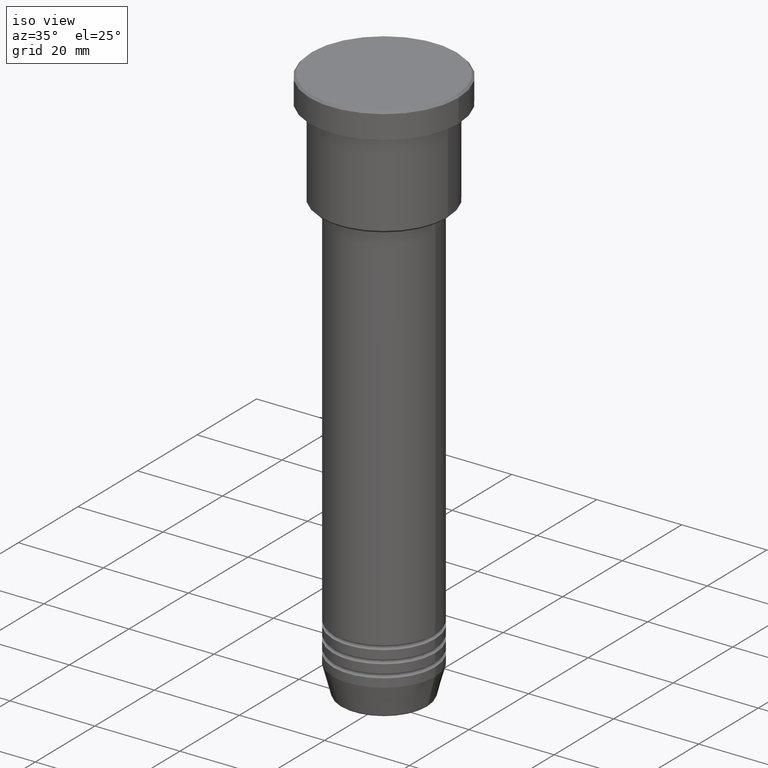
[diagram: clean part render]
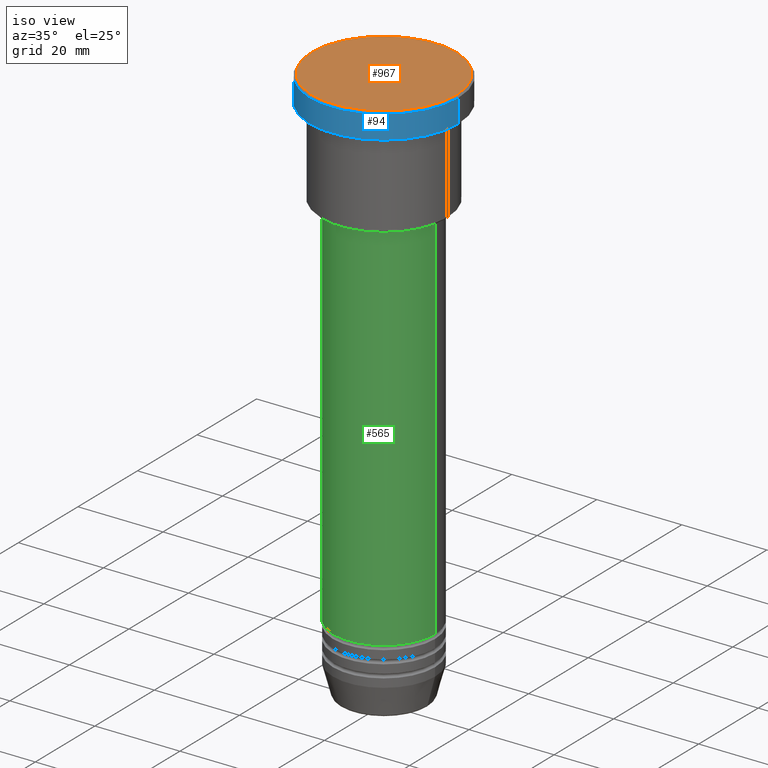
[diagram: same view with three faces highlighted in distinct colors, each labeled with its STEP entity id]
A machine part, iso view with three faces highlighted in distinct colors.
Their STEP definitions:

[orange] entity #967 — the highlighted planar face has unit normal (0, -0, 1).
#67 = ORIENTED_EDGE ( 'NONE', *, *, #308, .T. ) ;
#128 = ORIENTED_EDGE ( 'NONE', *, *, #805, .T. ) ;
#153 = PLANE ( 'NONE',  #321 ) ;
#197 = CIRCLE ( 'NONE', #589, 17.00000000000002842 ) ;
#308 = EDGE_CURVE ( 'NONE', #969, #1164, #197, .T. ) ;
#321 = AXIS2_PLACEMENT_3D ( 'NONE', #864, #867, #769 ) ;
#383 = DIRECTION ( 'NONE',  ( 1.000000000000000000, 0.000000000000000000, 0.000000000000000000 ) ) ;
#486 = DIRECTION ( 'NONE',  ( 1.000000000000000000, 0.000000000000000000, 0.000000000000000000 ) ) ;
#501 = CARTESIAN_POINT ( 'NONE',  ( -17.00000000000002842, 0.000000000000000000, 0.000000000000000000 ) ) ;
#510 = FACE_OUTER_BOUND ( 'NONE', #853, .T. ) ;
#589 = AXIS2_PLACEMENT_3D ( 'NONE', #828, #926, #383 ) ;
#652 = AXIS2_PLACEMENT_3D ( 'NONE', #1104, #755, #486 ) ;
#755 = DIRECTION ( 'NONE',  ( -0.000000000000000000, -0.000000000000000000, 1.000000000000000000 ) ) ;
#769 = DIRECTION ( 'NONE',  ( 1.000000000000000000, 0.000000000000000000, 0.000000000000000000 ) ) ;
#805 = EDGE_CURVE ( 'NONE', #1164, #969, #1010, .T. ) ;
#828 = CARTESIAN_POINT ( 'NONE',  ( 0.000000000000000000, 0.000000000000000000, 0.000000000000000000 ) ) ;
#853 = EDGE_LOOP ( 'NONE', ( #67, #128 ) ) ;
#864 = CARTESIAN_POINT ( 'NONE',  ( 0.000000000000000000, 0.000000000000000000, 0.000000000000000000 ) ) ;
#867 = DIRECTION ( 'NONE',  ( 0.000000000000000000, -0.000000000000000000, 1.000000000000000000 ) ) ;
#926 = DIRECTION ( 'NONE',  ( -0.000000000000000000, -0.000000000000000000, 1.000000000000000000 ) ) ;
#967 = ADVANCED_FACE ( 'NONE', ( #510 ), #153, .T. ) ;
#969 = VERTEX_POINT ( 'NONE', #501 ) ;
#1010 = CIRCLE ( 'NONE', #652, 17.00000000000002842 ) ;
#1015 = CARTESIAN_POINT ( 'NONE',  ( 17.00000000000002842, 2.112515728529186039E-15, 0.000000000000000000 ) ) ;
#1104 = CARTESIAN_POINT ( 'NONE',  ( 0.000000000000000000, 0.000000000000000000, 0.000000000000000000 ) ) ;
#1164 = VERTEX_POINT ( 'NONE', #1015 ) ;

[blue] entity #94 — the highlighted cylindrical surface (partial cylindrical patch) has radius 17.5 mm, axis along (-0, -0, 1).
#94 = ADVANCED_FACE ( 'NONE', ( #454 ), #521, .T. ) ;
#126 = EDGE_CURVE ( 'NONE', #453, #1096, #263, .T. ) ;
#133 = CARTESIAN_POINT ( 'NONE',  ( -17.50000000000000000, 2.143131898507868248E-15, -5.999999999999995559 ) ) ;
#160 = LINE ( 'NONE', #445, #871 ) ;
#182 = DIRECTION ( 'NONE',  ( -0.000000000000000000, -0.000000000000000000, 1.000000000000000000 ) ) ;
#205 = DIRECTION ( 'NONE',  ( 1.000000000000000000, 0.000000000000000000, 0.000000000000000000 ) ) ;
#217 = DIRECTION ( 'NONE',  ( 0.000000000000000000, 0.000000000000000000, -1.000000000000000000 ) ) ;
#226 = AXIS2_PLACEMENT_3D ( 'NONE', #679, #217, #205 ) ;
#263 = CIRCLE ( 'NONE', #910, 17.50000000000000000 ) ;
#273 = CARTESIAN_POINT ( 'NONE',  ( 17.50000000000000000, 0.000000000000000000, -5.999999999999995559 ) ) ;
#301 = CIRCLE ( 'NONE', #226, 17.50000000000000000 ) ;
#380 = EDGE_CURVE ( 'NONE', #940, #850, #301, .T. ) ;
#407 = ORIENTED_EDGE ( 'NONE', *, *, #126, .T. ) ;
#418 = DIRECTION ( 'NONE',  ( 1.000000000000000000, 0.000000000000000000, 0.000000000000000000 ) ) ;
#427 = CARTESIAN_POINT ( 'NONE',  ( 0.000000000000000000, 0.000000000000000000, 0.000000000000000000 ) ) ;
#445 = CARTESIAN_POINT ( 'NONE',  ( -17.50000000000000000, 2.143131898507868248E-15, 0.000000000000000000 ) ) ;
#453 = VERTEX_POINT ( 'NONE', #133 ) ;
#454 = FACE_OUTER_BOUND ( 'NONE', #666, .T. ) ;
#477 = AXIS2_PLACEMENT_3D ( 'NONE', #427, #712, #418 ) ;
#481 = EDGE_CURVE ( 'NONE', #1096, #940, #1064, .T. ) ;
#491 = CARTESIAN_POINT ( 'NONE',  ( 17.50000000000000000, 0.000000000000000000, -0.4999999999999864553 ) ) ;
#507 = DIRECTION ( 'NONE',  ( -0.000000000000000000, -0.000000000000000000, 1.000000000000000000 ) ) ;
#521 = CYLINDRICAL_SURFACE ( 'NONE', #477, 17.50000000000000000 ) ;
#560 = DIRECTION ( 'NONE',  ( 1.000000000000000000, 0.000000000000000000, 0.000000000000000000 ) ) ;
#594 = ORIENTED_EDGE ( 'NONE', *, *, #380, .T. ) ;
#628 = VECTOR ( 'NONE', #507, 1000.000000000000000 ) ;
#640 = CARTESIAN_POINT ( 'NONE',  ( 0.000000000000000000, 0.000000000000000000, -5.999999999999995559 ) ) ;
#666 = EDGE_LOOP ( 'NONE', ( #1001, #407, #829, #594 ) ) ;
#679 = CARTESIAN_POINT ( 'NONE',  ( 0.000000000000000000, 0.000000000000000000, -0.4999999999999864553 ) ) ;
#701 = CARTESIAN_POINT ( 'NONE',  ( 17.50000000000000000, 0.000000000000000000, 0.000000000000000000 ) ) ;
#712 = DIRECTION ( 'NONE',  ( -0.000000000000000000, -0.000000000000000000, 1.000000000000000000 ) ) ;
#720 = DIRECTION ( 'NONE',  ( -0.000000000000000000, -0.000000000000000000, 1.000000000000000000 ) ) ;
#829 = ORIENTED_EDGE ( 'NONE', *, *, #481, .T. ) ;
#850 = VERTEX_POINT ( 'NONE', #929 ) ;
#871 = VECTOR ( 'NONE', #720, 1000.000000000000000 ) ;
#910 = AXIS2_PLACEMENT_3D ( 'NONE', #640, #182, #560 ) ;
#929 = CARTESIAN_POINT ( 'NONE',  ( -17.50000000000000000, 2.143131898507868248E-15, -0.4999999999999864553 ) ) ;
#940 = VERTEX_POINT ( 'NONE', #491 ) ;
#1001 = ORIENTED_EDGE ( 'NONE', *, *, #1042, .F. ) ;
#1042 = EDGE_CURVE ( 'NONE', #453, #850, #160, .T. ) ;
#1064 = LINE ( 'NONE', #701, #628 ) ;
#1096 = VERTEX_POINT ( 'NONE', #273 ) ;

[green] entity #565 — the highlighted cylindrical surface (partial cylindrical patch) has radius 12 mm, axis along (-0, -0, 1).
#25 = AXIS2_PLACEMENT_3D ( 'NONE', #55, #763, #775 ) ;
#46 = EDGE_LOOP ( 'NONE', ( #241, #561, #326, #431 ) ) ;
#55 = CARTESIAN_POINT ( 'NONE',  ( 0.000000000000000000, 0.000000000000000000, -28.00000000000000355 ) ) ;
#66 = DIRECTION ( 'NONE',  ( 1.000000000000000000, 0.000000000000000000, 0.000000000000000000 ) ) ;
#107 = EDGE_CURVE ( 'NONE', #772, #309, #239, .T. ) ;
#123 = EDGE_CURVE ( 'NONE', #609, #306, #999, .T. ) ;
#239 = LINE ( 'NONE', #440, #946 ) ;
#241 = ORIENTED_EDGE ( 'NONE', *, *, #107, .F. ) ;
#248 = CIRCLE ( 'NONE', #1111, 12.00000000000000000 ) ;
#286 = CARTESIAN_POINT ( 'NONE',  ( 12.00000000000000000, 0.000000000000000000, -28.00000000000000355 ) ) ;
#306 = VERTEX_POINT ( 'NONE', #286 ) ;
#309 = VERTEX_POINT ( 'NONE', #653 ) ;
#326 = ORIENTED_EDGE ( 'NONE', *, *, #123, .T. ) ;
#351 = DIRECTION ( 'NONE',  ( -0.000000000000000000, -0.000000000000000000, 1.000000000000000000 ) ) ;
#431 = ORIENTED_EDGE ( 'NONE', *, *, #900, .F. ) ;
#440 = CARTESIAN_POINT ( 'NONE',  ( -12.00000000000000000, 1.469576158976823947E-15, 0.000000000000000000 ) ) ;
#476 = CARTESIAN_POINT ( 'NONE',  ( -12.00000000000000000, 1.469576158976823947E-15, -115.9999999999999574 ) ) ;
#488 = DIRECTION ( 'NONE',  ( -0.000000000000000000, -0.000000000000000000, 1.000000000000000000 ) ) ;
#519 = DIRECTION ( 'NONE',  ( -0.000000000000000000, -0.000000000000000000, 1.000000000000000000 ) ) ;
#539 = CARTESIAN_POINT ( 'NONE',  ( 12.00000000000000000, 0.000000000000000000, -115.9999999999999574 ) ) ;
#541 = CIRCLE ( 'NONE', #25, 12.00000000000000000 ) ;
#561 = ORIENTED_EDGE ( 'NONE', *, *, #851, .T. ) ;
#565 = ADVANCED_FACE ( 'NONE', ( #868 ), #874, .T. ) ;
#609 = VERTEX_POINT ( 'NONE', #539 ) ;
#651 = DIRECTION ( 'NONE',  ( 1.000000000000000000, 0.000000000000000000, 0.000000000000000000 ) ) ;
#653 = CARTESIAN_POINT ( 'NONE',  ( -12.00000000000000000, 1.469576158976823947E-15, -28.00000000000000355 ) ) ;
#763 = DIRECTION ( 'NONE',  ( -0.000000000000000000, -0.000000000000000000, 1.000000000000000000 ) ) ;
#772 = VERTEX_POINT ( 'NONE', #476 ) ;
#775 = DIRECTION ( 'NONE',  ( 1.000000000000000000, 0.000000000000000000, 0.000000000000000000 ) ) ;
#835 = VECTOR ( 'NONE', #351, 1000.000000000000000 ) ;
#851 = EDGE_CURVE ( 'NONE', #772, #609, #248, .T. ) ;
#868 = FACE_OUTER_BOUND ( 'NONE', #46, .T. ) ;
#874 = CYLINDRICAL_SURFACE ( 'NONE', #1148, 12.00000000000000000 ) ;
#900 = EDGE_CURVE ( 'NONE', #309, #306, #541, .T. ) ;
#916 = DIRECTION ( 'NONE',  ( -0.000000000000000000, -0.000000000000000000, 1.000000000000000000 ) ) ;
#937 = CARTESIAN_POINT ( 'NONE',  ( 0.000000000000000000, 0.000000000000000000, -115.9999999999999574 ) ) ;
#946 = VECTOR ( 'NONE', #488, 1000.000000000000000 ) ;
#999 = LINE ( 'NONE', #1179, #835 ) ;
#1043 = CARTESIAN_POINT ( 'NONE',  ( 0.000000000000000000, 0.000000000000000000, 0.000000000000000000 ) ) ;
#1111 = AXIS2_PLACEMENT_3D ( 'NONE', #937, #916, #651 ) ;
#1148 = AXIS2_PLACEMENT_3D ( 'NONE', #1043, #519, #66 ) ;
#1179 = CARTESIAN_POINT ( 'NONE',  ( 12.00000000000000000, 0.000000000000000000, 0.000000000000000000 ) ) ;